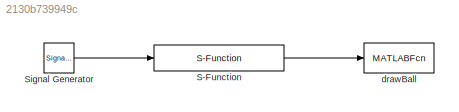
MODEL slx_2130b739949c
KIND model
CONFIG AbsTol = auto
CONFIG EnableMultiTasking = off
CONFIG FixedStep = auto
CONFIG InitFcn = ball_on_beam_param
CONFIG MaxStep = 0.1
CONFIG MinStep = auto
CONFIG RelTol = 1e-3
CONFIG SampleTimeConstraint = Unconstrained
CONFIG Solver = ode45
CONFIG SolverName = ode45
CONFIG StartTime = 0.0
CONFIG StopTime = 10000
BLOCK [S-Function] S-Function
  EnableBusSupport = off
  FunctionName = ball_on_beam_dynamics
  Parameters = Par
  Ports = [1, 1]
  SFcnIsStateOwnerBlock = off
  SFunctionDeploymentMode = off
BLOCK [SignalGenerator] Signal Generator
  Amplitude = 20
  Frequency = 5
  Ports = [0, 1]
  Units = rad/sec
BLOCK [MATLABFcn] drawBall
  MATLABFcn = ball_on_beam_animation(u)
  OutputDimensions = 0
  Ports = [1]
LINE S-Function:1 -> drawBall:1
LINE Signal Generator:1 -> S-Function:1
